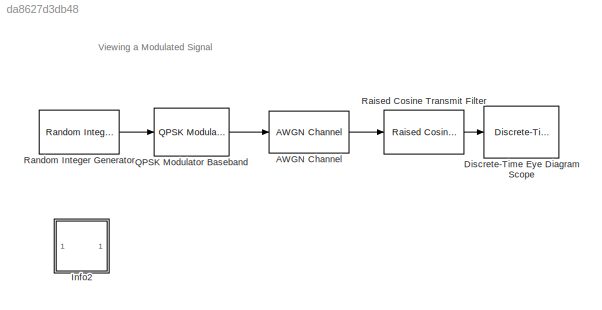
MODEL slx_da8627d3db48
KIND model
BLOCK [Reference] AWGN Channel  REF=commchan3/AWGN
Channel
  EbNodB = 10
  EsNodB = 10
  InputProcessing = Columns as channels (frame based)
  Ports = [1, 1]
  Ps = 1
  SNRdB = 15
  SourceBlock = commchan3/AWGN\nChannel
  SourceType = AWGN Channel
  Tsym = 1
  UserDataPersistent = on
  bitsPerSym = 1
  noiseMode = Signal to noise ratio  (SNR)
  seed = 67
  variance = 1
BLOCK [Reference] Discrete-Time Eye Diagram Scope  REF=commsink2/Discrete-Time
Eye Diagram
Scope
  AxisGrid = on
  Diagnostics = AllowInheritedTsInSrc
  FigPos = [360 447 560 487]
  FrameNumber = off
  LineColors = b
  LineMarkers = +
  LineStyles = -
  Ports = [1]
  SourceBlock = commsink2/Discrete-Time\nEye Diagram\nScope
  SourceType = Discrete-Time Eye Diagram Scope
  Tag = EyeDiagram
  block_type_ = eye
  dispDiagram = In-phase Only
  dupPoints = on
  fading = on
  figTitle = Eye Diagram
  inphaseLabel = In-phase Amplitude
  numLinesMax = 8
  numNewFrames = 1
  numTraces = 3
  offsetEye = 0
  openScopeAtSimStart = on
  quadratureLabel = Quadrature Amplitude
  render = on
  sampPerSymb = 8
  symbPerTrace = 3
  yMax = 1.5
  yMin = -1.5
BLOCK [SubSystem] Info2
  AncestorBlock = commblksprivate/Info
  OpenFcn = helpview([docroot '/toolbox/comm/comm.map'], 'doc_signaldisplays')
  Ports = []
  RequestExecContextInheritance = off
BLOCK [Reference] QPSK Modulator Baseband  REF=commdigbbndpm3/QPSK
Modulator
Baseband
  Enc = Binary
  InType = Integer
  Ph = pi/4
  Ports = [1, 1]
  SourceBlock = commdigbbndpm3/QPSK\nModulator\nBaseband
  SourceType = QPSK Modulator Baseband
  outDtype = double
  outFracLen = 15
  outFracLenMode = Best precision
  outUDDataType = sfix(16)
  outWordLen = 16
BLOCK [Reference] Raised Cosine Transmit Filter  REF=commfilt2/Raised Cosine
Transmit Filter
  D = 3
  InputProcessing = Elements as channels (sample based)
  LockScale = off
  N = 8
  Ports = [1, 1]
  R = 0.5
  SourceBlock = commfilt2/Raised Cosine\nTransmit Filter
  SourceType = Raised Cosine Transmit Filter
  UserDataPersistent = on
  accumFracLength = 30
  accumMode = Inherit via internal rule
  accumWordLength = 32
  checkCoeff = off
  checkGain = Normalized
  coeffFracLength = 15
  coeffMode = Same word length as input
  coeffWordLength = 16
  currentFiltSpan = 2*(3)
  filtSpan = 2*(3)
  filtType = Normal
  filterGain = rcfiltgaincompat(gcbh)
  framing = Maintain input frame size
  launchFVT = off
  outputFracLength = 15
  outputMode = Same as accumulator
  outputWordLength = 16
  overflowMode = off
  prodOutputFracLength = 30
  prodOutputMode = Inherit via internal rule
  prodOutputWordLength = 32
  roundingMode = Floor
  sampMode = Mute
  saveAsFlag = 0
  variableName = rcTxFilt
BLOCK [Reference] Random Integer Generator  REF=commrandsrc2/Random Integer
Generator
  Ports = [0, 1]
  SourceBlock = commrandsrc2/Random Integer\nGenerator
  SourceType = Random Integer Generator
  Ts = .01
  frameBased = off
  mul = 4
  orient = off
  outDataType = double
  sampPerFrame = 1
  seed = 37
ANNOTATION (root): Viewing a Modulated Signal
LINE AWGN Channel:1 -> Raised Cosine Transmit Filter:1
LINE QPSK Modulator Baseband:1 -> AWGN Channel:1
LINE Raised Cosine Transmit Filter:1 -> Discrete-Time Eye Diagram Scope:1
LINE Random Integer Generator:1 -> QPSK Modulator Baseband:1
